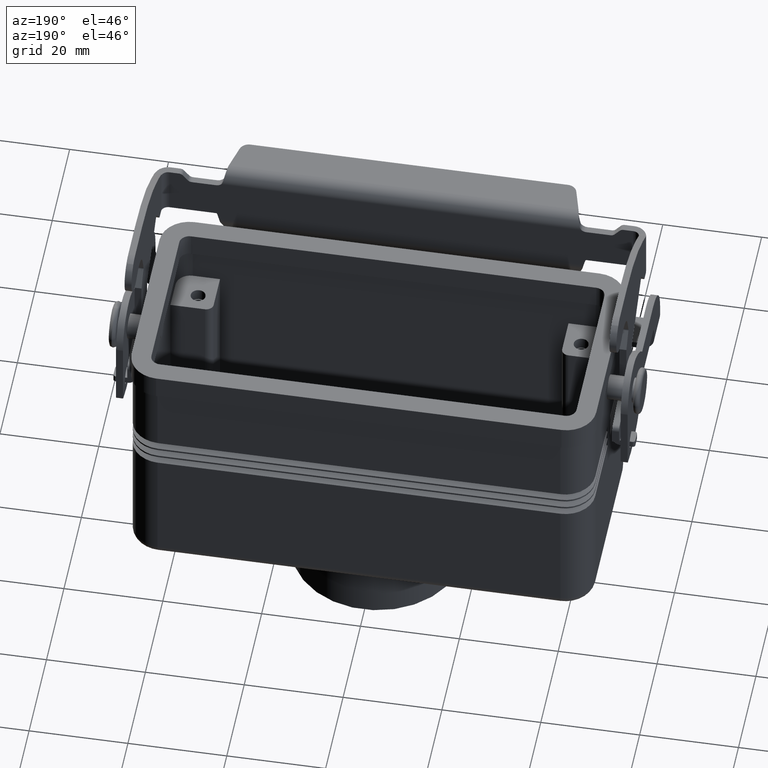
[diagram: clean part render]
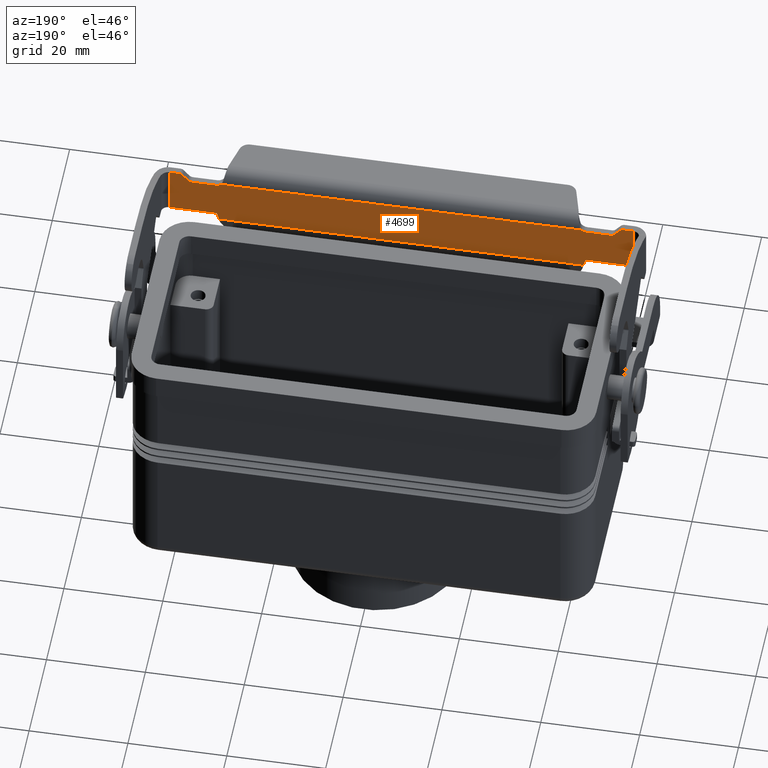
[diagram: same view with one face highlighted and labeled with its STEP entity id]
A machine part, auxiliary view. The second image highlights one B-rep face of the part: STEP entity #4699.
In plain terms, the highlighted face is a freeform B-spline surface patch.
Its self-contained STEP definition (entity closure, byte-faithful):
#1945=CARTESIAN_POINT('',(-36.873482775579035,-26.766637302590745,5.800808306497624));
#1946=VERTEX_POINT('',#1945);
#2852=CARTESIAN_POINT('',(-36.445901726643555,-26.766637302590745,15.777622637585782));
#2853=VERTEX_POINT('',#2852);
#2897=CARTESIAN_POINT('',(-37.483362697409255,-26.766637302590752,15.360985334995052));
#2898=VERTEX_POINT('',#2897);
#2899=CARTESIAN_POINT('',(-37.483362697409255,-26.766637302590752,16.860985334995053));
#2900=DIRECTION('',(2.071704E-016,1.0,-5.551115E-017));
#2901=DIRECTION('',(-0.965925826289068,2.144786E-016,0.258819045102521));
#2902=AXIS2_PLACEMENT_3D('',#2899,#2900,#2901);
#2903=CIRCLE('',#2902,1.500000000000000);
#2904=EDGE_CURVE('',#2853,#2898,#2903,.T.);
#3277=CARTESIAN_POINT('',(-46.950000000000003,-26.766637302590752,7.360985334995051));
#3278=VERTEX_POINT('',#3277);
#3289=CARTESIAN_POINT('',(-46.950000000000003,-26.766637302590752,17.360985334995050));
#3290=VERTEX_POINT('',#3289);
#3298=CARTESIAN_POINT('',(-46.950000000000003,-26.766637302590752,7.360985334995051));
#3299=DIRECTION('',(0.0,0.0,1.0));
#3300=VECTOR('',#3299,10.0);
#3301=LINE('',#3298,#3300);
#3302=EDGE_CURVE('',#3278,#3290,#3301,.T.);
#3313=CARTESIAN_POINT('',(-44.983362697409262,-26.766637302590752,17.360985334995050));
#3314=VERTEX_POINT('',#3313);
#3321=CARTESIAN_POINT('',(-44.983362697409262,-26.766637302590752,17.360985334995050));
#3322=DIRECTION('',(-1.0,0.0,0.0));
#3323=VECTOR('',#3322,1.966637302590740);
#3324=LINE('',#3321,#3323);
#3325=EDGE_CURVE('',#3314,#3290,#3324,.T.);
#3338=CARTESIAN_POINT('',(-44.217318254290284,-26.766637302590752,17.003772944681590));
#3339=VERTEX_POINT('',#3338);
#3340=CARTESIAN_POINT('',(-44.983362697409262,-26.766637302590752,16.360985334995050));
#3341=DIRECTION('',(0.0,-1.0,0.0));
#3342=DIRECTION('',(0.0,0.0,1.0));
#3343=AXIS2_PLACEMENT_3D('',#3340,#3341,#3342);
#3344=CIRCLE('',#3343,1.0);
#3345=EDGE_CURVE('',#3339,#3314,#3344,.T.);
#3363=CARTESIAN_POINT('',(-43.138592561863689,-26.766637302590752,15.718197725308515));
#3364=VERTEX_POINT('',#3363);
#3365=CARTESIAN_POINT('',(-43.138592561863689,-26.766637302590752,15.718197725308515));
#3366=DIRECTION('',(-0.642787609686538,0.0,0.766044443118979));
#3367=VECTOR('',#3366,1.678199262354552);
#3368=LINE('',#3365,#3367);
#3369=EDGE_CURVE('',#3364,#3339,#3368,.T.);
#3387=CARTESIAN_POINT('',(-42.372548118744710,-26.766637302590752,15.360985334995050));
#3388=VERTEX_POINT('',#3387);
#3389=CARTESIAN_POINT('',(-42.372548118744710,-26.766637302590752,16.360985334995053));
#3390=DIRECTION('',(0.0,1.0,0.0));
#3391=DIRECTION('',(0.0,0.0,1.0));
#3392=AXIS2_PLACEMENT_3D('',#3389,#3390,#3391);
#3393=CIRCLE('',#3392,1.0);
#3394=EDGE_CURVE('',#3388,#3364,#3393,.T.);
#3412=CARTESIAN_POINT('',(-37.483362697409255,-26.766637302590752,15.360985334995052));
#3413=DIRECTION('',(-1.0,0.0,0.0));
#3414=VECTOR('',#3413,4.889185421335455);
#3415=LINE('',#3412,#3414);
#3416=EDGE_CURVE('',#2898,#3388,#3415,.T.);
#3432=CARTESIAN_POINT('',(-37.241881240836989,-26.766637302590752,7.175690096270681));
#3433=VERTEX_POINT('',#3432);
#3440=CARTESIAN_POINT('',(-37.241881240836989,-26.766637302590752,7.175690096270681));
#3441=DIRECTION('',(0.258819045102525,4.991932E-015,-0.965925826289067));
#3442=VECTOR('',#3441,1.423382367831631);
#3443=LINE('',#3440,#3442);
#3444=EDGE_CURVE('',#3433,#1946,#3443,.T.);
#3454=CARTESIAN_POINT('',(-37.483362697409255,-26.766637302590752,7.360985334995051));
#3455=VERTEX_POINT('',#3454);
#3456=CARTESIAN_POINT('',(-37.483362697409255,-26.766637302590752,7.110985334995053));
#3457=DIRECTION('',(0.0,1.0,0.0));
#3458=DIRECTION('',(0.0,0.0,-1.0));
#3459=AXIS2_PLACEMENT_3D('',#3456,#3457,#3458);
#3460=CIRCLE('',#3459,0.250000000000000);
#3461=EDGE_CURVE('',#3455,#3433,#3460,.T.);
#3488=CARTESIAN_POINT('',(-46.950000000000003,-26.766637302590752,7.360985334995051));
#3489=DIRECTION('',(1.0,0.0,0.0));
#3490=VECTOR('',#3489,9.466637302590748);
#3491=LINE('',#3488,#3490);
#3492=EDGE_CURVE('',#3278,#3455,#3491,.T.);
#4506=CARTESIAN_POINT('',(36.873482775579035,-26.766637302590741,5.800808306497622));
#4507=VERTEX_POINT('',#4506);
#4556=CARTESIAN_POINT('',(36.873482775579035,-26.766637302590741,5.800808306497622));
#4557=DIRECTION('',(-1.0,0.0,0.0));
#4558=VECTOR('',#4557,73.746965551158070);
#4559=LINE('',#4556,#4558);
#4560=EDGE_CURVE('',#4507,#1946,#4559,.T.);
#4580=CARTESIAN_POINT('',(37.241881240836989,-26.766637302590745,7.175690096270691));
#4581=VERTEX_POINT('',#4580);
#4582=CARTESIAN_POINT('',(37.241881240836989,-26.766637302590745,7.175690096270691));
#4583=DIRECTION('',(-0.258819045102523,2.495966E-015,-0.965925826289068));
#4584=VECTOR('',#4583,1.423382367831643);
#4585=LINE('',#4582,#4584);
#4586=EDGE_CURVE('',#4581,#4507,#4585,.T.);
#4598=CARTESIAN_POINT('',(46.950000000000017,-26.766637302590752,17.360985334995057));
#4599=CARTESIAN_POINT('',(46.950000000000010,-26.766637302590741,5.800808306497540));
#4600=CARTESIAN_POINT('',(-46.949999999999989,-26.766637302590773,17.360985334995139));
#4601=CARTESIAN_POINT('',(-46.949999999999996,-26.766637302590766,5.800808306497622));
#4602=B_SPLINE_SURFACE_WITH_KNOTS('',1,1,((#4598,#4600),(#4599,#4601)),.UNSPECIFIED.,.F.,.F.,.U.,(2,2),(2,2),(0.0,11.560177028497517),(0.0,93.900000000000006),.UNSPECIFIED.);
#4603=CARTESIAN_POINT('',(36.445901726643541,-26.766637302590752,15.777622637585818));
#4604=VERTEX_POINT('',#4603);
#4605=CARTESIAN_POINT('',(-36.445901726643555,-26.766637302590745,15.777622637585782));
#4606=DIRECTION('',(1.0,0.0,0.0));
#4607=VECTOR('',#4606,72.891803453287096);
#4608=LINE('',#4605,#4607);
#4609=EDGE_CURVE('',#2853,#4604,#4608,.T.);
#4610=ORIENTED_EDGE('',*,*,#4609,.T.);
#4611=CARTESIAN_POINT('',(37.483362697409262,-26.766637302590755,15.360985334995064));
#4612=VERTEX_POINT('',#4611);
#4613=CARTESIAN_POINT('',(37.483362697409262,-26.766637302590755,16.860985334995064));
#4614=DIRECTION('',(-1.487417E-017,-1.000000000000000,-3.985521E-018));
#4615=DIRECTION('',(0.965925826289069,-1.539887E-017,0.258819045102520));
#4616=AXIS2_PLACEMENT_3D('',#4613,#4614,#4615);
#4617=CIRCLE('',#4616,1.500000000000000);
#4618=EDGE_CURVE('',#4604,#4612,#4617,.T.);
#4619=ORIENTED_EDGE('',*,*,#4618,.T.);
#4620=CARTESIAN_POINT('',(42.372548118744717,-26.766637302590755,15.360985334995057));
#4621=VERTEX_POINT('',#4620);
#4622=CARTESIAN_POINT('',(37.483362697409262,-26.766637302590755,15.360985334995064));
#4623=DIRECTION('',(1.0,0.0,0.0));
#4624=VECTOR('',#4623,4.889185421335455);
#4625=LINE('',#4622,#4624);
#4626=EDGE_CURVE('',#4612,#4621,#4625,.T.);
#4627=ORIENTED_EDGE('',*,*,#4626,.T.);
#4628=CARTESIAN_POINT('',(43.138592561863689,-26.766637302590755,15.718197725308523));
#4629=VERTEX_POINT('',#4628);
#4630=CARTESIAN_POINT('',(42.372548118744717,-26.766637302590755,16.360985334995060));
#4631=DIRECTION('',(0.0,-1.0,0.0));
#4632=DIRECTION('',(0.0,0.0,1.0));
#4633=AXIS2_PLACEMENT_3D('',#4630,#4631,#4632);
#4634=CIRCLE('',#4633,1.0);
#4635=EDGE_CURVE('',#4621,#4629,#4634,.T.);
#4636=ORIENTED_EDGE('',*,*,#4635,.T.);
#4637=CARTESIAN_POINT('',(44.217318254290291,-26.766637302590755,17.003772944681597));
#4638=VERTEX_POINT('',#4637);
#4639=CARTESIAN_POINT('',(43.138592561863689,-26.766637302590755,15.718197725308523));
#4640=DIRECTION('',(0.642787609686541,0.0,0.766044443118977));
#4641=VECTOR('',#4640,1.678199262354557);
#4642=LINE('',#4639,#4641);
#4643=EDGE_CURVE('',#4629,#4638,#4642,.T.);
#4644=ORIENTED_EDGE('',*,*,#4643,.T.);
#4645=CARTESIAN_POINT('',(44.983362697409262,-26.766637302590755,17.360985334995057));
#4646=VERTEX_POINT('',#4645);
#4647=CARTESIAN_POINT('',(44.983362697409262,-26.766637302590755,16.360985334995057));
#4648=DIRECTION('',(0.0,1.0,0.0));
#4649=DIRECTION('',(0.0,0.0,1.0));
#4650=AXIS2_PLACEMENT_3D('',#4647,#4648,#4649);
#4651=CIRCLE('',#4650,1.0);
#4652=EDGE_CURVE('',#4638,#4646,#4651,.T.);
#4653=ORIENTED_EDGE('',*,*,#4652,.T.);
#4654=CARTESIAN_POINT('',(46.950000000000003,-26.766637302590755,17.360985334995053));
#4655=VERTEX_POINT('',#4654);
#4656=CARTESIAN_POINT('',(44.983362697409262,-26.766637302590755,17.360985334995057));
#4657=DIRECTION('',(1.0,0.0,0.0));
#4658=VECTOR('',#4657,1.966637302590740);
#4659=LINE('',#4656,#4658);
#4660=EDGE_CURVE('',#4646,#4655,#4659,.T.);
#4661=ORIENTED_EDGE('',*,*,#4660,.T.);
#4662=CARTESIAN_POINT('',(46.950000000000003,-26.766637302590745,7.360985334995053));
#4663=VERTEX_POINT('',#4662);
#4664=CARTESIAN_POINT('',(46.950000000000003,-26.766637302590755,17.360985334995053));
#4665=DIRECTION('',(0.0,0.0,-1.0));
#4666=VECTOR('',#4665,10.0);
#4667=LINE('',#4664,#4666);
#4668=EDGE_CURVE('',#4655,#4663,#4667,.T.);
#4669=ORIENTED_EDGE('',*,*,#4668,.T.);
#4670=CARTESIAN_POINT('',(37.483362697409255,-26.766637302590745,7.360985334995061));
#4671=VERTEX_POINT('',#4670);
#4672=CARTESIAN_POINT('',(46.950000000000003,-26.766637302590745,7.360985334995053));
#4673=DIRECTION('',(-1.0,0.0,0.0));
#4674=VECTOR('',#4673,9.466637302590748);
#4675=LINE('',#4672,#4674);
#4676=EDGE_CURVE('',#4663,#4671,#4675,.T.);
#4677=ORIENTED_EDGE('',*,*,#4676,.T.);
#4678=CARTESIAN_POINT('',(37.483362697409255,-26.766637302590745,7.110985334995062));
#4679=DIRECTION('',(0.0,-1.0,0.0));
#4680=DIRECTION('',(0.0,0.0,-1.0));
#4681=AXIS2_PLACEMENT_3D('',#4678,#4679,#4680);
#4682=CIRCLE('',#4681,0.250000000000000);
#4683=EDGE_CURVE('',#4671,#4581,#4682,.T.);
#4684=ORIENTED_EDGE('',*,*,#4683,.T.);
#4685=ORIENTED_EDGE('',*,*,#4586,.T.);
#4686=ORIENTED_EDGE('',*,*,#4560,.T.);
#4687=ORIENTED_EDGE('',*,*,#3444,.F.);
#4688=ORIENTED_EDGE('',*,*,#3461,.F.);
#4689=ORIENTED_EDGE('',*,*,#3492,.F.);
#4690=ORIENTED_EDGE('',*,*,#3302,.T.);
#4691=ORIENTED_EDGE('',*,*,#3325,.F.);
#4692=ORIENTED_EDGE('',*,*,#3345,.F.);
#4693=ORIENTED_EDGE('',*,*,#3369,.F.);
#4694=ORIENTED_EDGE('',*,*,#3394,.F.);
#4695=ORIENTED_EDGE('',*,*,#3416,.F.);
#4696=ORIENTED_EDGE('',*,*,#2904,.F.);
#4697=EDGE_LOOP('',(#4610,#4619,#4627,#4636,#4644,#4653,#4661,#4669,#4677,#4684,#4685,#4686,#4687,#4688,#4689,#4690,#4691,#4692,#4693,#4694,#4695,#4696));
#4698=FACE_OUTER_BOUND('',#4697,.T.);
#4699=ADVANCED_FACE('',(#4698),#4602,.T.);